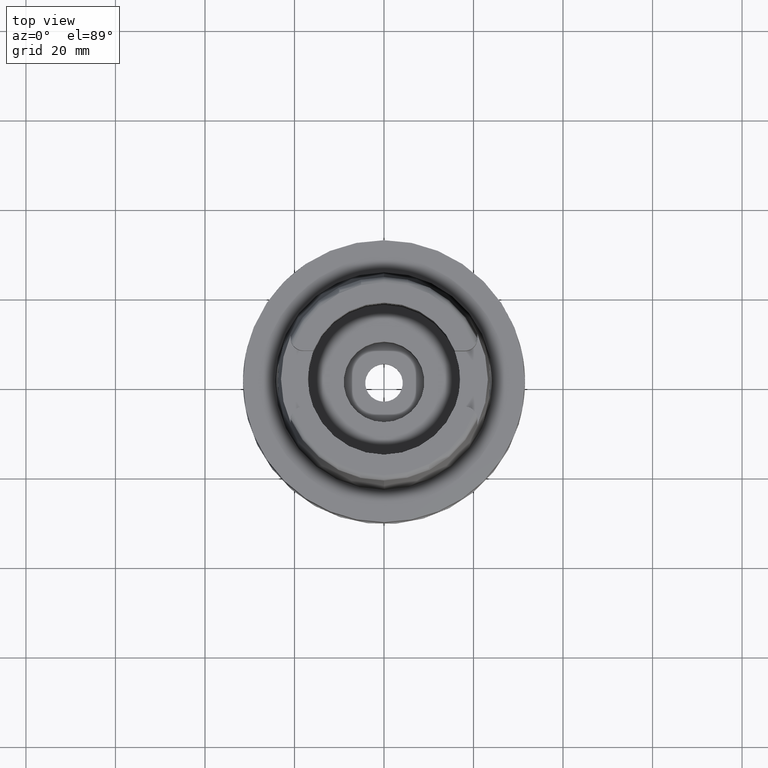
[diagram: clean part render]
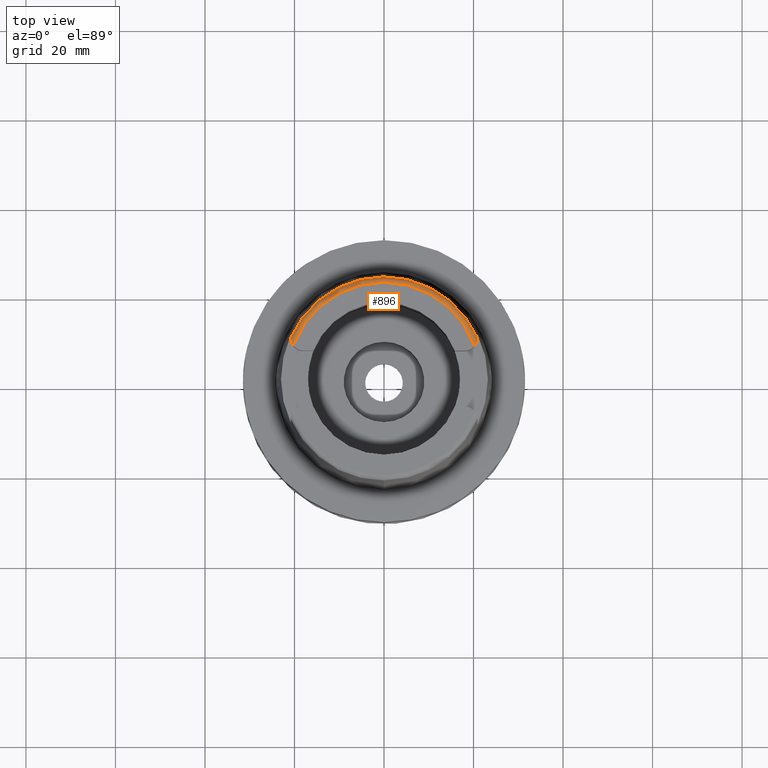
[diagram: same view with one face highlighted and labeled with its STEP entity id]
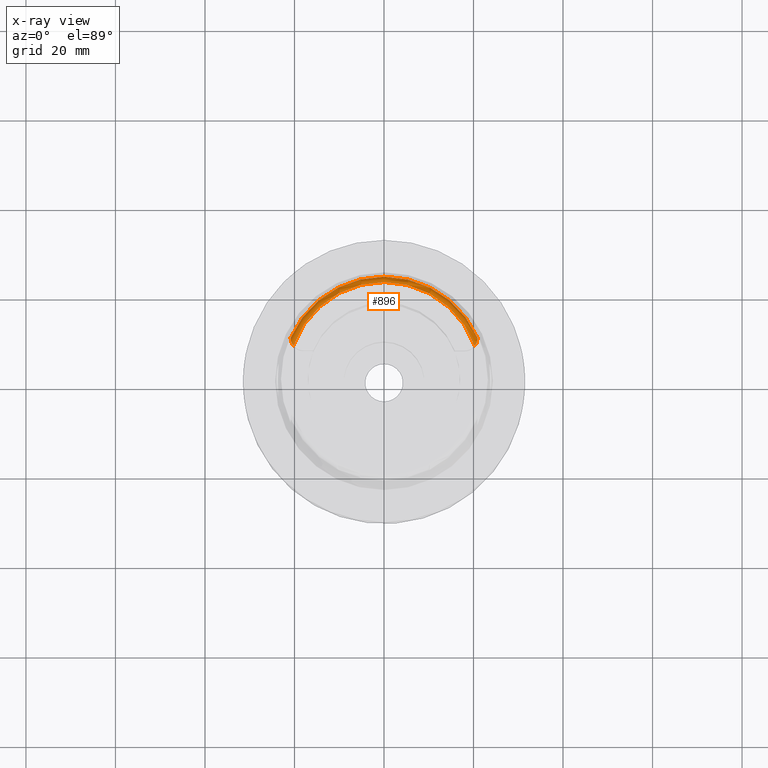
[diagram: x-ray of the same camera — body ghosted, the highlighted face saturated]
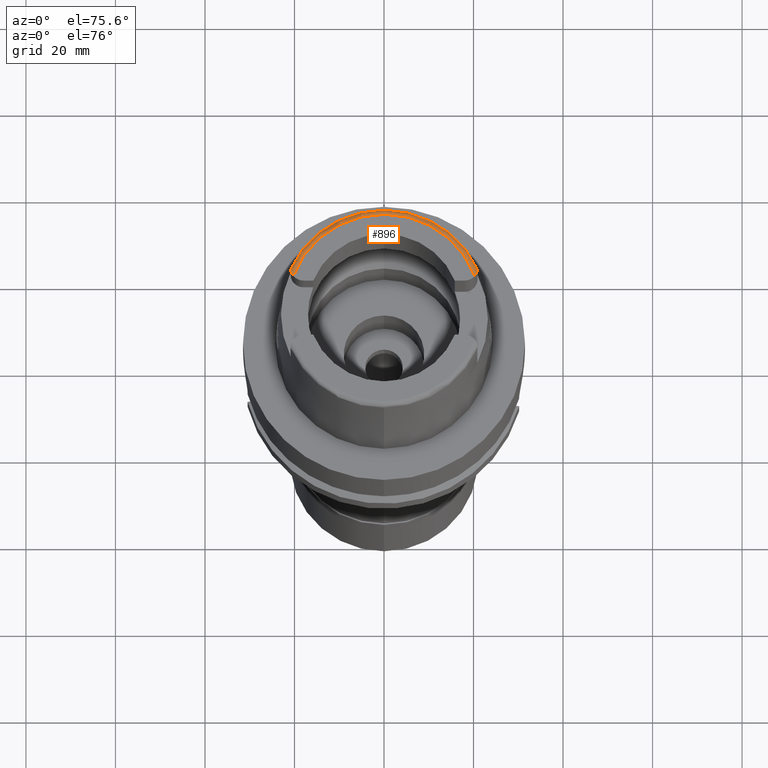
[diagram: same view with one face highlighted and labeled with its STEP entity id]
A machine part, top view. The second image highlights one B-rep face of the part: STEP entity #896.
The next image is the same camera in x-ray: the body ghosted, the highlighted face saturated — about 0% of this face is hidden behind the body in this view.
A second angle (auxiliary view) of the same face is appended — the face is thin or edge-on in the first view.
In plain terms, the highlighted toroidal blend (fillet) surface has major radius 21.5735 mm and minor (blend) radius 1.2 mm.
Its self-contained STEP definition (entity closure, byte-faithful):
#9 = CARTESIAN_POINT ( 'NONE',  ( -20.50241752747762902, 7.740768627950790126, 31.95172885456699774 ) ) ;
#57 = CARTESIAN_POINT ( 'NONE',  ( -20.76698682199618062, 8.385130633764546815, 31.67475546954063503 ) ) ;
#86 = AXIS2_PLACEMENT_3D ( 'NONE', #3138, #1916, #5302 ) ;
#107 = CARTESIAN_POINT ( 'NONE',  ( -20.63483510791524367, 8.010065450029934198, 31.86057877234333446 ) ) ;
#341 = CARTESIAN_POINT ( 'NONE',  ( 0.0000000000000000000, 0.0000000000000000000, 30.80000000000000071 ) ) ;
#392 = CARTESIAN_POINT ( 'NONE',  ( 20.71305354123284559, 8.144458681538099043, 31.78757142788168366 ) ) ;
#421 = CARTESIAN_POINT ( 'NONE',  ( 20.82265843727426002, 8.556984400704115146, 31.54764171408564621 ) ) ;
#428 = CARTESIAN_POINT ( 'NONE',  ( -20.84232070471927045, 8.747027045512133725, 31.41966638301078163 ) ) ;
#434 = TOROIDAL_SURFACE ( 'NONE', #3694, 21.57348458609000019, 1.199999999999999956 ) ;
#480 = CARTESIAN_POINT ( 'NONE',  ( -20.86948601194893982, 9.049325069981945191, 31.07788838012932331 ) ) ;
#531 = CARTESIAN_POINT ( 'NONE',  ( -20.59521263870312069, 7.921578239594733617, 31.89478398768902423 ) ) ;
#703 = CIRCLE ( 'NONE', #86, 22.77198729362000051 ) ;
#749 = CARTESIAN_POINT ( 'NONE',  ( 20.83205975549990185, 8.609261661330199544, 31.51085303264478199 ) ) ;
#802 = CARTESIAN_POINT ( 'NONE',  ( 20.86978559484882467, 9.019648016277937330, 31.10432881551051310 ) ) ;
#832 = CARTESIAN_POINT ( 'NONE',  ( 20.86751874269965157, 8.946616112754242067, 31.20451425997154971 ) ) ;
#840 = CARTESIAN_POINT ( 'NONE',  ( -20.74571062949739897, 8.312952070572142915, 31.71558737623707103 ) ) ;
#864 = CARTESIAN_POINT ( 'NONE',  ( -20.34090866149043109, 7.482197860170622938, 31.99999999999999289 ) ) ;
#896 = ADVANCED_FACE ( 'NONE', ( #3222 ), #434, .T. ) ;
#928 = DIRECTION ( 'NONE',  ( 0.0000000000000000000, 0.0000000000000000000, -1.000000000000000000 ) ) ;
#961 = CARTESIAN_POINT ( 'NONE',  ( 20.28174256341000259, 7.352969181062000814, 32.00000000000000000 ) ) ;
#1045 = ORIENTED_EDGE ( 'NONE', *, *, #1571, .F. ) ;
#1083 = CIRCLE ( 'NONE', #3388, 21.57348458608998598 ) ;
#1195 = CARTESIAN_POINT ( 'NONE',  ( 20.85115162928102706, 8.739223447946766754, 31.41061145367485352 ) ) ;
#1259 = CARTESIAN_POINT ( 'NONE',  ( -20.69357568539823689, 8.154735758684882541, 31.79813842550145608 ) ) ;
#1278 = B_SPLINE_CURVE_WITH_KNOTS ( 'NONE', 3,
 ( #3460, #4673, #2576, #4261 ),
 .UNSPECIFIED., .F., .F.,
 ( 4, 4 ),
 ( 0.0000000000000000000, 1.000000000000000000 ),
 .UNSPECIFIED. ) ;
#1288 = CARTESIAN_POINT ( 'NONE',  ( -20.85319874071812407, 8.837873227189914971, 31.33415012169331249 ) ) ;
#1313 = CARTESIAN_POINT ( 'NONE',  ( -20.86267695368034580, 8.943661526363095859, 31.21751443114546021 ) ) ;
#1315 = DIRECTION ( 'NONE',  ( -0.9395199128801114963, 0.3424942821446042007, 0.0000000000000000000 ) ) ;
#1321 = CARTESIAN_POINT ( 'NONE',  ( 20.87000000000000099, 9.070000000000000284, 31.00584217417999966 ) ) ;
#1367 = CARTESIAN_POINT ( 'NONE',  ( -20.40883878024892084, 7.581969858535221540, 31.98793221364175210 ) ) ;
#1394 = ORIENTED_EDGE ( 'NONE', *, *, #2197, .F. ) ;
#1412 = EDGE_CURVE ( 'NONE', #3672, #2551, #4436, .T. ) ;
#1571 = EDGE_CURVE ( 'NONE', #1847, #3672, #1278, .T. ) ;
#1587 = DIRECTION ( 'NONE',  ( 0.0000000000000000000, 0.0000000000000000000, 1.000000000000000000 ) ) ;
#1597 = ORIENTED_EDGE ( 'NONE', *, *, #4039, .T. ) ;
#1609 = CARTESIAN_POINT ( 'NONE',  ( 20.81106748312383914, 8.498419532833471735, 31.58704743086533639 ) ) ;
#1664 = CARTESIAN_POINT ( 'NONE',  ( 20.64060926962590514, 7.959988449764548335, 31.86721685613519384 ) ) ;
#1695 = CARTESIAN_POINT ( 'NONE',  ( 20.81761238430172867, 8.530347801269192232, 31.56592149613852172 ) ) ;
#1701 = CARTESIAN_POINT ( 'NONE',  ( -20.73756539608274707, 8.286591230104164651, 31.73001885392742594 ) ) ;
#1725 = CARTESIAN_POINT ( 'NONE',  ( 20.87000000000000099, 9.070000000000000284, 31.00584217417999966 ) ) ;
#1732 = CARTESIAN_POINT ( 'NONE',  ( -20.80903093346185173, 8.560133102320413911, 31.56174295145187969 ) ) ;
#1754 = CARTESIAN_POINT ( 'NONE',  ( -20.75018196161525452, 8.327845453346570892, 31.70726756020816950 ) ) ;
#1768 = CARTESIAN_POINT ( 'NONE',  ( 0.0000000000000000000, 22.77198729362000051, 30.85992712280000205 ) ) ;
#1809 = CARTESIAN_POINT ( 'NONE',  ( -20.66274362328571357, 8.075710493112358890, 31.83361772913172061 ) ) ;
#1847 = VERTEX_POINT ( 'NONE', #4919 ) ;
#1851 = CARTESIAN_POINT ( 'NONE',  ( 20.41033537728889868, 7.518612218250971146, 32.00000000000000711 ) ) ;
#1860 = AXIS2_PLACEMENT_3D ( 'NONE', #3244, #4935, #4032 ) ;
#1916 = DIRECTION ( 'NONE',  ( 0.0000000000000000000, 0.0000000000000000000, -1.000000000000000000 ) ) ;
#2090 = CARTESIAN_POINT ( 'NONE',  ( 20.68814919936143681, 8.075214651592443005, 31.81988446360250933 ) ) ;
#2176 = CARTESIAN_POINT ( 'NONE',  ( -20.86956538219461521, 9.098280193811749683, 30.96800110763524216 ) ) ;
#2197 = EDGE_CURVE ( 'NONE', #4303, #3143, #3365, .T. ) ;
#2226 = CARTESIAN_POINT ( 'NONE',  ( -20.62781755094188441, 7.993898355693432656, 31.86706579089740998 ) ) ;
#2499 = CARTESIAN_POINT ( 'NONE',  ( 20.80811568110592091, 8.484555674143997805, 31.59605844339077763 ) ) ;
#2525 = CARTESIAN_POINT ( 'NONE',  ( 20.86558355147503008, 8.904044499543857683, 31.25368105494697701 ) ) ;
#2531 = CARTESIAN_POINT ( 'NONE',  ( -20.77891415305220235, 8.430006798768568288, 31.64765806028507100 ) ) ;
#2551 = VERTEX_POINT ( 'NONE', #5055 ) ;
#2560 = CARTESIAN_POINT ( 'NONE',  ( -20.85609715330534542, 8.866134607651275701, 31.30547521804121658 ) ) ;
#2576 = CARTESIAN_POINT ( 'NONE',  ( 20.87000000000000099, 9.091125264144002571, 30.95748277894191958 ) ) ;
#2584 = CARTESIAN_POINT ( 'NONE',  ( -20.79479070975093435, 8.495739222310064065, 31.60538034131942808 ) ) ;
#2610 = CARTESIAN_POINT ( 'NONE',  ( 20.52604302648479262, 7.706222084449527721, 31.96156467649952049 ) ) ;
#2658 = CARTESIAN_POINT ( 'NONE',  ( -20.86974110888999689, 9.111383544754000141, 30.85992740345999863 ) ) ;
#2705 = EDGE_CURVE ( 'NONE', #5245, #4303, #5044, .T. ) ;
#2835 = EDGE_CURVE ( 'NONE', #3143, #1847, #703, .T. ) ;
#2876 = CARTESIAN_POINT ( 'NONE',  ( 20.75881573356316778, 8.282786581060804565, 31.71840784896039267 ) ) ;
#3132 = ORIENTED_EDGE ( 'NONE', *, *, #2835, .F. ) ;
#3138 = CARTESIAN_POINT ( 'NONE',  ( 0.0000000000000000000, 0.0000000000000000000, 30.85992712280000205 ) ) ;
#3143 = VERTEX_POINT ( 'NONE', #1768 ) ;
#3222 = FACE_OUTER_BOUND ( 'NONE', #4203, .T. ) ;
#3244 = CARTESIAN_POINT ( 'NONE',  ( 0.0000000000000000000, 0.0000000000000000000, 30.85992712280000205 ) ) ;
#3298 = CARTESIAN_POINT ( 'NONE',  ( 20.80611452408082940, 8.475273295614613289, 31.60205623851878443 ) ) ;
#3326 = CARTESIAN_POINT ( 'NONE',  ( 20.87000000000000810, 9.048612286743152211, 31.05480236099016622 ) ) ;
#3354 = CARTESIAN_POINT ( 'NONE',  ( 20.63055068949680404, 7.936978453311605897, 31.87609723992559196 ) ) ;
#3365 = CIRCLE ( 'NONE', #1860, 22.77198729362000407 ) ;
#3388 = AXIS2_PLACEMENT_3D ( 'NONE', #3855, #928, #1315 ) ;
#3460 = CARTESIAN_POINT ( 'NONE',  ( 20.86994457043000040, 9.110917567833000774, 30.85992712280000205 ) ) ;
#3494 = CARTESIAN_POINT ( 'NONE',  ( -20.53222337451765256, 7.795221386910494488, 31.93664412161919230 ) ) ;
#3672 = VERTEX_POINT ( 'NONE', #1321 ) ;
#3694 = AXIS2_PLACEMENT_3D ( 'NONE', #341, #1587, #4942 ) ;
#3708 = ORIENTED_EDGE ( 'NONE', *, *, #2705, .F. ) ;
#3763 = CARTESIAN_POINT ( 'NONE',  ( 20.83740694936907190, 8.642784416606851039, 31.48602175523739533 ) ) ;
#3798 = CARTESIAN_POINT ( 'NONE',  ( -20.26871835884000106, 7.388795116669998997, 32.00000000000000000 ) ) ;
#3827 = CARTESIAN_POINT ( 'NONE',  ( -20.61490133162499561, 7.964864799586671928, 31.87837934060826228 ) ) ;
#3853 = CARTESIAN_POINT ( 'NONE',  ( -20.86974110888999689, 9.111383544754000141, 30.85992740345999863 ) ) ;
#3855 = CARTESIAN_POINT ( 'NONE',  ( 0.0000000000000000000, 0.0000000000000000000, 32.00000000000000000 ) ) ;
#4032 = DIRECTION ( 'NONE',  ( -0.9164655183265837390, 0.4001136759951928745, 0.0000000000000000000 ) ) ;
#4039 = EDGE_CURVE ( 'NONE', #5245, #2551, #1083, .T. ) ;
#4173 = CARTESIAN_POINT ( 'NONE',  ( 20.78392506153389618, 8.374784949873722795, 31.66624878637331619 ) ) ;
#4203 = EDGE_LOOP ( 'NONE', ( #1597, #4279, #1045, #3132, #1394, #3708 ) ) ;
#4207 = CARTESIAN_POINT ( 'NONE',  ( -20.83218176567878999, 8.678359125139243346, 31.47599929103732919 ) ) ;
#4238 = CARTESIAN_POINT ( 'NONE',  ( -20.86080555660155156, 8.918552577581946750, 31.24778644431113861 ) ) ;
#4261 = CARTESIAN_POINT ( 'NONE',  ( 20.87000000000000099, 9.070000000000000284, 31.00584217417999966 ) ) ;
#4268 = CARTESIAN_POINT ( 'NONE',  ( -20.81369494178784763, 8.582968678359394588, 31.54556801000576982 ) ) ;
#4279 = ORIENTED_EDGE ( 'NONE', *, *, #1412, .F. ) ;
#4303 = VERTEX_POINT ( 'NONE', #2658 ) ;
#4312 = CARTESIAN_POINT ( 'NONE',  ( 20.62611002832090890, 7.926975593086277527, 31.87988961406097133 ) ) ;
#4436 = B_SPLINE_CURVE_WITH_KNOTS ( 'NONE', 3,
 ( #1725, #3326, #802, #832, #2525, #4540, #1195, #3763, #749, #421, #1695, #1609, #2499, #3298, #4988, #4173, #2876, #392, #2090, #5460, #1664, #3354, #4312, #2610, #1851, #961 ),
 .UNSPECIFIED., .F., .F.,
 ( 4, 2, 2, 2, 2, 1, 1, 2, 2, 2, 1, 1, 2, 2, 4 ),
 ( 0.0000000000000000000, 0.1250000000000256739, 0.2500000000000513478, 0.3750000000000770495, 0.4375000000000885403, 0.4687500000000935918, 0.4843750000000961453, 0.4921875000000988654, 0.5000000000001015854, 0.6250000000000893730, 0.6875000000000830447, 0.7187500000000790479, 0.7343750000000761613, 0.7500000000000731637, 1.000000000000000000 ),
 .UNSPECIFIED. ) ;
#4540 = CARTESIAN_POINT ( 'NONE',  ( 20.85726479032205560, 8.798000716838512147, 31.35911596017926328 ) ) ;
#4632 = CARTESIAN_POINT ( 'NONE',  ( -20.72503365264780939, 8.247041336702885417, 31.75127531399091296 ) ) ;
#4673 = CARTESIAN_POINT ( 'NONE',  ( 20.87000000000000099, 9.104744530400667557, 30.90884546146858725 ) ) ;
#4745 = CARTESIAN_POINT ( 'NONE',  ( -20.57460423451626141, 7.879093966877276145, 31.90949160231312121 ) ) ;
#4919 = CARTESIAN_POINT ( 'NONE',  ( 20.86994457043000040, 9.110917567833000774, 30.85992712280000205 ) ) ;
#4935 = DIRECTION ( 'NONE',  ( 0.0000000000000000000, 0.0000000000000000000, -1.000000000000000000 ) ) ;
#4942 = DIRECTION ( 'NONE',  ( -0.0006539142454762719193, -0.9999997861980568503, 0.0000000000000000000 ) ) ;
#4966 = CARTESIAN_POINT ( 'NONE',  ( -20.26871835884000106, 7.388795116669998997, 32.00000000000000000 ) ) ;
#4988 = CARTESIAN_POINT ( 'NONE',  ( 20.80532173160114695, 8.471627991472125530, 31.60440164677834218 ) ) ;
#5044 = B_SPLINE_CURVE_WITH_KNOTS ( 'NONE', 3,
 ( #3798, #864, #1367, #9, #3494, #4745, #531, #3827, #2226, #107, #1809, #1259, #4632, #1701, #840, #1754, #57, #2531, #2584, #5090, #1732, #4268, #4207, #428, #1288, #2560, #4238, #1313, #480, #2176, #3853 ),
 .UNSPECIFIED., .F., .F.,
 ( 4, 2, 2, 1, 2, 2, 1, 1, 2, 2, 2, 2, 2, 2, 2, 2, 4 ),
 ( 0.0000000000000000000, 0.1249999999999648059, 0.1874999999999482081, 0.2187499999999409639, 0.2343749999999366340, 0.2499999999999323319, 0.3124999999999240052, 0.3437499999999220623, 0.3593749999999226730, 0.3749999999999232836, 0.4374999999999314437, 0.4687499999999337197, 0.4999999999999360512, 0.6249999999999513722, 0.6874999999999580336, 0.7499999999999648059, 1.000000000000000000 ),
 .UNSPECIFIED. ) ;
#5055 = CARTESIAN_POINT ( 'NONE',  ( 20.28174256341000259, 7.352969181062000814, 32.00000000000000000 ) ) ;
#5090 = CARTESIAN_POINT ( 'NONE',  ( -20.79974710454460407, 8.517386714258920577, 31.59101583415049319 ) ) ;
#5245 = VERTEX_POINT ( 'NONE', #4966 ) ;
#5302 = DIRECTION ( 'NONE',  ( 0.0000000000000000000, 1.000000000000000000, 0.0000000000000000000 ) ) ;
#5460 = CARTESIAN_POINT ( 'NONE',  ( 20.65542940348105816, 7.994523560577591503, 31.85361268623208986 ) ) ;